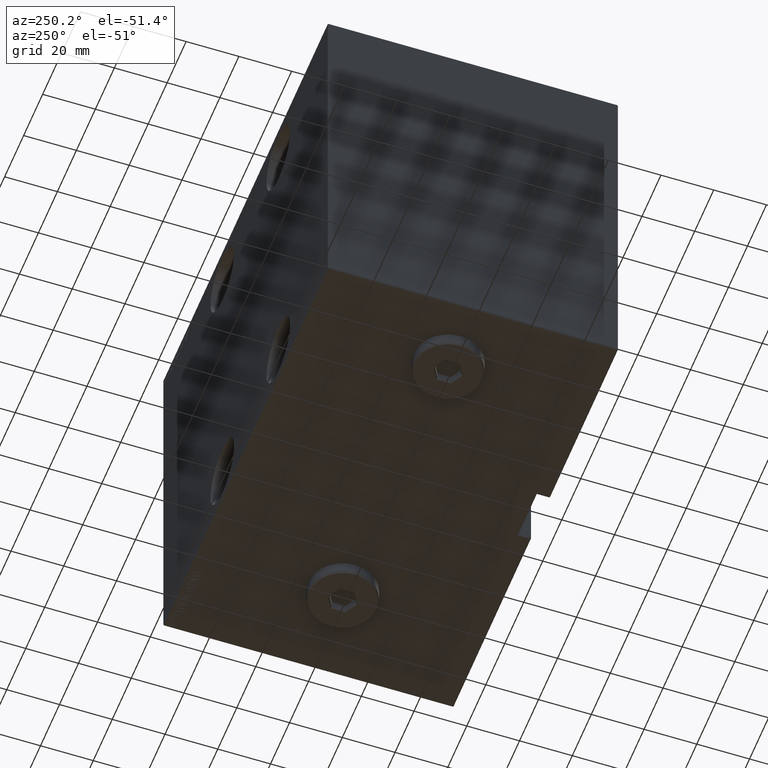
[diagram: clean part render]
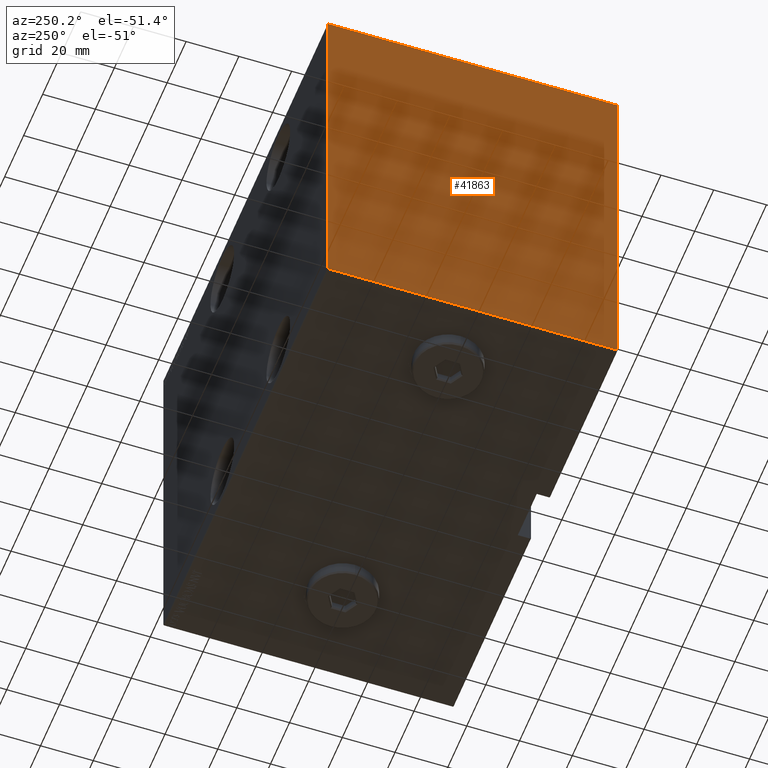
[diagram: same view with one face highlighted and labeled with its STEP entity id]
A machine part, auxiliary view. The second image highlights one B-rep face of the part: STEP entity #41863.
In plain terms, the highlighted planar face has unit normal (-1, -0, 0).
Its self-contained STEP definition (entity closure, byte-faithful):
#405 = VERTEX_POINT ( 'NONE', #38330 ) ;
#1035 = EDGE_CURVE ( 'NONE', #6591, #5830, #7617, .T. ) ;
#2256 = ORIENTED_EDGE ( 'NONE', *, *, #38080, .T. ) ;
#2546 = LINE ( 'NONE', #5244, #27134 ) ;
#3993 = CARTESIAN_POINT ( 'NONE',  ( 173.0000000000000000, 54.99999999999999289, 70.00000000000000000 ) ) ;
#4723 = VECTOR ( 'NONE', #11839, 1000.000000000000000 ) ;
#4795 = CARTESIAN_POINT ( 'NONE',  ( 173.0000000000000000, 55.00000000000002132, -70.00000000000000000 ) ) ;
#5244 = CARTESIAN_POINT ( 'NONE',  ( 173.0000000000000000, -62.34999999999998721, -62.34999999999998721 ) ) ;
#5830 = VERTEX_POINT ( 'NONE', #17798 ) ;
#6591 = VERTEX_POINT ( 'NONE', #6637 ) ;
#6637 = CARTESIAN_POINT ( 'NONE',  ( 173.0000000000000000, 54.69999999999999574, -70.00000000000000000 ) ) ;
#7021 = ORIENTED_EDGE ( 'NONE', *, *, #1035, .T. ) ;
#7617 = LINE ( 'NONE', #42164, #12392 ) ;
#9776 = EDGE_CURVE ( 'NONE', #15705, #24692, #33818, .T. ) ;
#9812 = CARTESIAN_POINT ( 'NONE',  ( 173.0000000000000000, -62.34999999999998721, 62.34999999999998721 ) ) ;
#9919 = DIRECTION ( 'NONE',  ( -0.000000000000000000, -0.7071067811865474617, 0.7071067811865474617 ) ) ;
#10328 = VECTOR ( 'NONE', #30019, 1000.000000000000114 ) ;
#11432 = DIRECTION ( 'NONE',  ( -0.000000000000000000, 0.7071067811865474617, 0.7071067811865474617 ) ) ;
#11839 = DIRECTION ( 'NONE',  ( 0.000000000000000000, -1.000000000000000000, 0.000000000000000000 ) ) ;
#11914 = ORIENTED_EDGE ( 'NONE', *, *, #19555, .T. ) ;
#12285 = DIRECTION ( 'NONE',  ( 0.000000000000000000, 0.000000000000000000, -1.000000000000000000 ) ) ;
#12392 = VECTOR ( 'NONE', #11432, 1000.000000000000114 ) ;
#13702 = EDGE_CURVE ( 'NONE', #405, #15705, #14774, .T. ) ;
#14560 = LINE ( 'NONE', #39233, #18272 ) ;
#14774 = LINE ( 'NONE', #3993, #4723 ) ;
#15705 = VERTEX_POINT ( 'NONE', #30146 ) ;
#16435 = ORIENTED_EDGE ( 'NONE', *, *, #9776, .T. ) ;
#16922 = VECTOR ( 'NONE', #23290, 1000.000000000000000 ) ;
#17085 = ORIENTED_EDGE ( 'NONE', *, *, #18880, .T. ) ;
#17798 = CARTESIAN_POINT ( 'NONE',  ( 173.0000000000000000, 55.00000000000002132, -69.69999999999998863 ) ) ;
#18272 = VECTOR ( 'NONE', #22190, 1000.000000000000000 ) ;
#18880 = EDGE_CURVE ( 'NONE', #29778, #6591, #14560, .T. ) ;
#18941 = DIRECTION ( 'NONE',  ( -0.000000000000000000, 0.7071067811865474617, -0.7071067811865474617 ) ) ;
#19555 = EDGE_CURVE ( 'NONE', #5830, #26022, #41812, .T. ) ;
#19582 = CARTESIAN_POINT ( 'NONE',  ( 173.0000000000000000, 62.34999999999998721, 62.34999999999998721 ) ) ;
#19698 = FACE_OUTER_BOUND ( 'NONE', #26831, .T. ) ;
#20351 = LINE ( 'NONE', #36972, #16922 ) ;
#22190 = DIRECTION ( 'NONE',  ( 0.000000000000000000, 1.000000000000000000, 0.000000000000000000 ) ) ;
#22646 = VERTEX_POINT ( 'NONE', #40328 ) ;
#23290 = DIRECTION ( 'NONE',  ( 0.000000000000000000, 0.000000000000000000, -1.000000000000000000 ) ) ;
#23633 = CARTESIAN_POINT ( 'NONE',  ( 173.0000000000000000, -54.69999999999997442, -70.00000000000000000 ) ) ;
#24692 = VERTEX_POINT ( 'NONE', #33754 ) ;
#26022 = VERTEX_POINT ( 'NONE', #38778 ) ;
#26244 = EDGE_CURVE ( 'NONE', #24692, #22646, #20351, .T. ) ;
#26428 = PLANE ( 'NONE',  #38686 ) ;
#26831 = EDGE_LOOP ( 'NONE', ( #17085, #7021, #11914, #37055, #35048, #16435, #43834, #2256 ) ) ;
#27134 = VECTOR ( 'NONE', #18941, 1000.000000000000114 ) ;
#29778 = VERTEX_POINT ( 'NONE', #23633 ) ;
#30019 = DIRECTION ( 'NONE',  ( 0.000000000000000000, -0.7071067811865474617, -0.7071067811865474617 ) ) ;
#30146 = CARTESIAN_POINT ( 'NONE',  ( 173.0000000000000000, -54.69999999999997442, 70.00000000000000000 ) ) ;
#31964 = DIRECTION ( 'NONE',  ( 0.000000000000000000, -1.982541115402065110E-16, 1.000000000000000000 ) ) ;
#32224 = EDGE_CURVE ( 'NONE', #26022, #405, #43572, .T. ) ;
#33754 = CARTESIAN_POINT ( 'NONE',  ( 173.0000000000000000, -54.99999999999999289, 69.69999999999998863 ) ) ;
#33818 = LINE ( 'NONE', #9812, #10328 ) ;
#35048 = ORIENTED_EDGE ( 'NONE', *, *, #13702, .T. ) ;
#36745 = DIRECTION ( 'NONE',  ( 1.000000000000000000, 0.000000000000000000, 0.000000000000000000 ) ) ;
#36972 = CARTESIAN_POINT ( 'NONE',  ( 173.0000000000000000, -54.99999999999999289, 70.00000000000000000 ) ) ;
#37055 = ORIENTED_EDGE ( 'NONE', *, *, #32224, .T. ) ;
#37154 = VECTOR ( 'NONE', #9919, 1000.000000000000114 ) ;
#38080 = EDGE_CURVE ( 'NONE', #22646, #29778, #2546, .T. ) ;
#38330 = CARTESIAN_POINT ( 'NONE',  ( 173.0000000000000000, 54.69999999999997442, 70.00000000000000000 ) ) ;
#38686 = AXIS2_PLACEMENT_3D ( 'NONE', #42792, #36745, #12285 ) ;
#38778 = CARTESIAN_POINT ( 'NONE',  ( 173.0000000000000000, 54.99999999999999289, 69.69999999999998863 ) ) ;
#39233 = CARTESIAN_POINT ( 'NONE',  ( 173.0000000000000000, -54.99999999999999289, -70.00000000000000000 ) ) ;
#40328 = CARTESIAN_POINT ( 'NONE',  ( 173.0000000000000000, -54.99999999999999289, -69.69999999999998863 ) ) ;
#41812 = LINE ( 'NONE', #4795, #41924 ) ;
#41863 = ADVANCED_FACE ( 'NONE', ( #19698 ), #26428, .T. ) ;
#41924 = VECTOR ( 'NONE', #31964, 1000.000000000000000 ) ;
#42164 = CARTESIAN_POINT ( 'NONE',  ( 173.0000000000000000, 62.34999999999999432, -62.34999999999999432 ) ) ;
#42792 = CARTESIAN_POINT ( 'NONE',  ( 173.0000000000000000, 0.000000000000000000, 0.000000000000000000 ) ) ;
#43572 = LINE ( 'NONE', #19582, #37154 ) ;
#43834 = ORIENTED_EDGE ( 'NONE', *, *, #26244, .T. ) ;